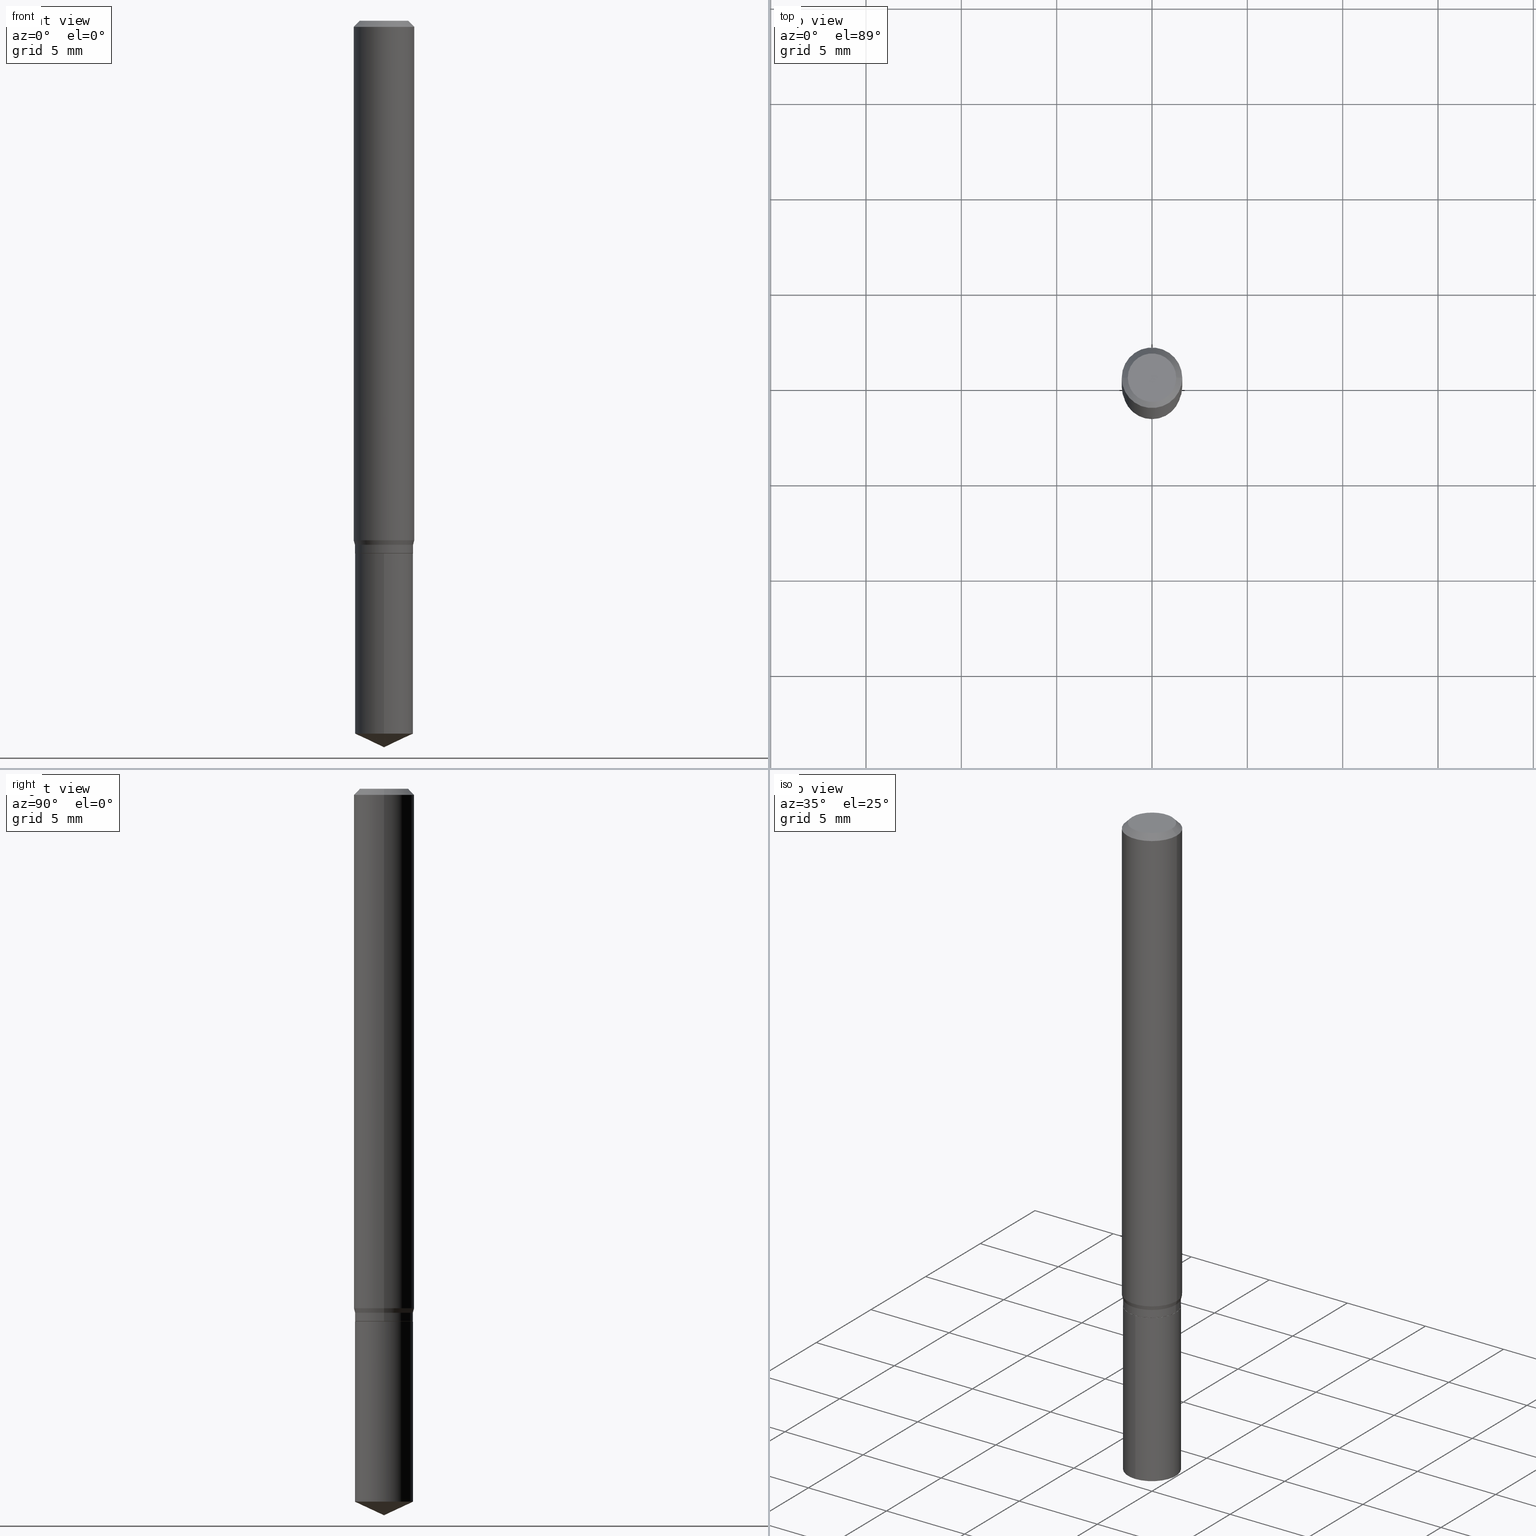
[diagram: canonical four-view strip — front | top / right | iso, engineering-drawing reading convention]
A machine part, canonical four-view strip (front | top / right | iso — engineering-drawing reading convention). The complete STEP part file that produces these views, byte-faithful:
ISO-10303-21;
HEADER;
FILE_DESCRIPTION (( 'STEP AP203' ),
    '1' );
FILE_NAME ('07227.STEP',
    '2024-04-23T20:05:45',
    ( '' ),
    ( '' ),
    'SwSTEP 2.0',
    'SolidWorks 2023',
    '' );
FILE_SCHEMA (( 'CONFIG_CONTROL_DESIGN' ));
ENDSEC;

DATA;
#1 = ORIENTED_EDGE ( 'NONE', *, *, #221, .F. ) ;
#2 = CIRCLE ( 'NONE', #109, 0.05999999999999999778 ) ;
#3 = CC_DESIGN_APPROVAL ( #303, ( #213 ) ) ;
#4 = FACE_OUTER_BOUND ( 'NONE', #463, .T. ) ;
#5 = ORIENTED_EDGE ( 'NONE', *, *, #473, .T. ) ;
#6 = FACE_OUTER_BOUND ( 'NONE', #134, .T. ) ;
#7 = DIRECTION ( 'NONE',  ( 1.000000000000000000, -6.982962677686268288E-15, 0.000000000000000000 ) ) ;
#8 = AXIS2_PLACEMENT_3D ( 'NONE', #146, #350, #230 ) ;
#9 = AXIS2_PLACEMENT_3D ( 'NONE', #142, #298, #444 ) ;
#10 = ADVANCED_FACE ( 'NONE', ( #405 ), #413, .T. ) ;
#11 = ORIENTED_EDGE ( 'NONE', *, *, #194, .T. ) ;
#12 = ORIENTED_EDGE ( 'NONE', *, *, #490, .F. ) ;
#13 = CARTESIAN_POINT ( 'NONE',  ( 2.690015686803650369E-29, -3.840629472727460101E-15, -1.100000000000000089 ) ) ;
#14 = DIRECTION ( 'NONE',  ( -6.982962677686268288E-15, -1.000000000000000000, 3.520397390770484241E-15 ) ) ;
#15 = EDGE_CURVE ( 'NONE', #19, #16, #2, .T. ) ;
#16 = VERTEX_POINT ( 'NONE', #225 ) ;
#17 = FACE_OUTER_BOUND ( 'NONE', #48, .T. ) ;
#18 = FACE_OUTER_BOUND ( 'NONE', #156, .T. ) ;
#19 = VERTEX_POINT ( 'NONE', #324 ) ;
#20 = DIRECTION ( 'NONE',  ( 0.7071067811865453523, -7.319954787623248157E-15, -0.7071067811865496822 ) ) ;
#21 = CIRCLE ( 'NONE', #348, 0.05999999999999999778 ) ;
#22 = CC_DESIGN_SECURITY_CLASSIFICATION ( #111, ( #213 ) ) ;
#23 = FACE_OUTER_BOUND ( 'NONE', #80, .T. ) ;
#24 = ADVANCED_FACE ( 'NONE', ( #93 ), #59, .T. ) ;
#25 = CARTESIAN_POINT ( 'NONE',  ( -4.189777606611400503E-16, -0.06000000000000514644, -1.472021540510699777 ) ) ;
#26 = CARTESIAN_POINT ( 'NONE',  ( 3.668099535622682715E-29, -5.237370474839449507E-15, -1.500000000000000222 ) ) ;
#27 = EDGE_LOOP ( 'NONE', ( #167, #203, #314, #178 ) ) ;
#28 = DIRECTION ( 'NONE',  ( -6.982962677686268288E-15, -1.000000000000000000, 3.520397390770484241E-15 ) ) ;
#29 = VERTEX_POINT ( 'NONE', #26 ) ;
#30 = EDGE_CURVE ( 'NONE', #476, #423, #308, .T. ) ;
#31 = CIRCLE ( 'NONE', #356, 0.06250000000000012490 ) ;
#32 = CC_DESIGN_APPROVAL ( #125, ( #111 ) ) ;
#33 = DIRECTION ( 'NONE',  ( -2.445468806185136597E-29, 3.491481338843145583E-15, 1.000000000000000000 ) ) ;
#34 = DIRECTION ( 'NONE',  ( -2.445468806185136877E-29, 3.491481338843145188E-15, 1.000000000000000000 ) ) ;
#35 = PERSON_AND_ORGANIZATION ( #427, #392 ) ;
#36 = DIRECTION ( 'NONE',  ( 6.439704144417020098E-15, 0.9063077870366507138, 0.4226182617406976649 ) ) ;
#37 = COORDINATED_UNIVERSAL_TIME_OFFSET ( 5, 0, .BEHIND. ) ;
#38 = APPROVAL ( #232, 'UNSPECIFIED' ) ;
#39 = PERSON_AND_ORGANIZATION ( #427, #392 ) ;
#40 = VECTOR ( 'NONE', #165, 39.37007874015748143 ) ;
#41 = CALENDAR_DATE ( 2024, 23, 4 ) ;
#42 = EDGE_LOOP ( 'NONE', ( #116, #259, #282, #287 ) ) ;
#43 = CARTESIAN_POINT ( 'NONE',  ( 0.000000000000000000, 0.000000000000000000, 0.000000000000000000 ) ) ;
#44 = ORIENTED_EDGE ( 'NONE', *, *, #386, .T. ) ;
#45 = CARTESIAN_POINT ( 'NONE',  ( 0.05949999999999999040, -4.256115752049792939E-15, -1.100000000000000089 ) ) ;
#46 = DIRECTION ( 'NONE',  ( 1.000000000000000000, -6.982962677686267499E-15, 4.876176775795936353E-29 ) ) ;
#47 = VECTOR ( 'NONE', #411, 39.37007874015748143 ) ;
#48 = EDGE_LOOP ( 'NONE', ( #190, #338 ) ) ;
#49 = CARTESIAN_POINT ( 'NONE',  ( 3.056836007731440539E-31, -4.364351673553960451E-17, -0.01250000000000008049 ) ) ;
#50 = EDGE_CURVE ( 'NONE', #77, #197, #266, .T. ) ;
#51 = CYLINDRICAL_SURFACE ( 'NONE', #334, 0.05999999999999999778 ) ;
#52 = EDGE_LOOP ( 'NONE', ( #274, #357, #11, #152 ) ) ;
#53 = CC_DESIGN_PERSON_AND_ORGANIZATION_ASSIGNMENT ( #442, #226, ( #233 ) ) ;
#54 = DIRECTION ( 'NONE',  ( -1.000000000000000000, 6.982962677686266711E-15, 0.000000000000000000 ) ) ;
#55 = AXIS2_PLACEMENT_3D ( 'NONE', #401, #56, #370 ) ;
#56 = DIRECTION ( 'NONE',  ( -2.445399690415121530E-29, 3.491580316559632610E-15, 1.000000000000000000 ) ) ;
#57 = VECTOR ( 'NONE', #336, 39.37007874015748143 ) ;
#58 = APPROVAL_DATE_TIME ( #431, #303 ) ;
#59 = CYLINDRICAL_SURFACE ( 'NONE', #55, 0.05999999999999999778 ) ;
#60 = CARTESIAN_POINT ( 'NONE',  ( -0.04999999999999999584, 3.709698922520826725E-16, -1.592040838894077649E-18 ) ) ;
#61 =( NAMED_UNIT ( * ) PLANE_ANGLE_UNIT ( ) SI_UNIT ( $, .RADIAN. ) );
#62 = DIRECTION ( 'NONE',  ( 1.000000000000000000, -6.982962677686269077E-15, 0.000000000000000000 ) ) ;
#63 = CARTESIAN_POINT ( 'NONE',  ( -0.05949999999999999040, -3.417856544950200510E-15, -1.100000000000000089 ) ) ;
#64 = EDGE_CURVE ( 'NONE', #114, #458, #150, .T. ) ;
#65 = EDGE_LOOP ( 'NONE', ( #107, #470, #311, #385 ) ) ;
#66 = AXIS2_PLACEMENT_3D ( 'NONE', #372, #183, #28 ) ;
#67 = CALENDAR_DATE ( 2024, 23, 4 ) ;
#68 = FACE_OUTER_BOUND ( 'NONE', #278, .T. ) ;
#69 = CARTESIAN_POINT ( 'NONE',  ( -0.05949999999999999040, -3.415207317776089703E-15, -1.100000000000000089 ) ) ;
#70 = LINE ( 'NONE', #337, #133 ) ;
#71 = VECTOR ( 'NONE', #36, 39.37007874015748854 ) ;
#72 = ADVANCED_FACE ( 'NONE', ( #126 ), #191, .T. ) ;
#73 = DATE_TIME_ROLE ( 'creation_date' ) ;
#74 = DESIGN_CONTEXT ( 'detailed design', #419, 'design' ) ;
#75 = ORIENTED_EDGE ( 'NONE', *, *, #264, .T. ) ;
#76 = CIRCLE ( 'NONE', #242, 0.05949999999999999040 ) ;
#77 = VERTEX_POINT ( 'NONE', #25 ) ;
#78 = FACE_OUTER_BOUND ( 'NONE', #42, .T. ) ;
#79 = DIRECTION ( 'NONE',  ( 1.000000000000000000, -6.982962677686266711E-15, 4.876176775795935793E-29 ) ) ;
#80 = EDGE_LOOP ( 'NONE', ( #403, #421, #157, #174 ) ) ;
#81 = DIRECTION ( 'NONE',  ( 1.000000000000000000, -6.982962677686268288E-15, 0.000000000000000000 ) ) ;
#82 = ADVANCED_FACE ( 'NONE', ( #397 ), #284, .T. ) ;
#83 = DIRECTION ( 'NONE',  ( -0.2588190451025213501, 5.211531920934551042E-15, 0.9659258262890682012 ) ) ;
#84 = ORIENTED_EDGE ( 'NONE', *, *, #402, .F. ) ;
#85 = DIRECTION ( 'NONE',  ( -6.982962677686265922E-15, -1.000000000000000000, 4.553079989440439092E-15 ) ) ;
#86 = DIRECTION ( 'NONE',  ( 0.2588190451025213501, 1.565188264969621968E-15, 0.9659258262890682012 ) ) ;
#87 = AXIS2_PLACEMENT_3D ( 'NONE', #204, #323, #327 ) ;
#88 = LOCAL_TIME ( 16, 5, 45.00000000000000000, #193 ) ;
#89 = CARTESIAN_POINT ( 'NONE',  ( -0.06250000000000000000, -1.450335970644045520E-15, -0.01250000000000008049 ) ) ;
#90 = DIRECTION ( 'NONE',  ( 0.7071067811865294761, -2.468850131082068128E-15, 0.7071067811865655584 ) ) ;
#91 = CARTESIAN_POINT ( 'NONE',  ( -9.260740279983036507E-28, 1.322265303911854087E-13, 37.87007874015748143 ) ) ;
#92 = APPLICATION_CONTEXT ( 'configuration controlled 3d designs of mechanical parts and assemblies' ) ;
#93 = FACE_OUTER_BOUND ( 'NONE', #371, .T. ) ;
#94 = CARTESIAN_POINT ( 'NONE',  ( 2.645997248292317923E-29, -3.777782808628283606E-15, -1.082000000000000073 ) ) ;
#95 = VECTOR ( 'NONE', #345, 39.37007874015748143 ) ;
#96 = ORIENTED_EDGE ( 'NONE', *, *, #484, .F. ) ;
#97 = CARTESIAN_POINT ( 'NONE',  ( 3.056836007731440539E-31, -4.364351673553960451E-17, -0.01250000000000008049 ) ) ;
#98 = DIRECTION ( 'NONE',  ( 1.000000000000000000, -6.982962677686268288E-15, 0.000000000000000000 ) ) ;
#99 = ORIENTED_EDGE ( 'NONE', *, *, #360, .T. ) ;
#100 = ADVANCED_FACE ( 'NONE', ( #117 ), #237, .T. ) ;
#101 = ORIENTED_EDGE ( 'NONE', *, *, #173, .T. ) ;
#102 = DIRECTION ( 'NONE',  ( 1.000000000000000000, -6.982962677686264344E-15, 0.000000000000000000 ) ) ;
#103 = PERSON_AND_ORGANIZATION_ROLE ( 'design_owner' ) ;
#104 = AXIS2_PLACEMENT_3D ( 'NONE', #94, #33, #487 ) ;
#105 = APPROVAL_PERSON_ORGANIZATION ( #39, #38, #381 ) ;
#106 = ADVANCED_FACE ( 'NONE', ( #462 ), #51, .T. ) ;
#107 = ORIENTED_EDGE ( 'NONE', *, *, #276, .F. ) ;
#108 = DATE_AND_TIME ( #188, #376 ) ;
#109 = AXIS2_PLACEMENT_3D ( 'NONE', #374, #406, #130 ) ;
#110 = AXIS2_PLACEMENT_3D ( 'NONE', #185, #481, #409 ) ;
#111 = SECURITY_CLASSIFICATION ( '', '', #330 ) ;
#112 = CC_DESIGN_DATE_AND_TIME_ASSIGNMENT ( #398, #253, ( #111 ) ) ;
#113 = DIRECTION ( 'NONE',  ( 1.000000000000000000, -6.982962677686267499E-15, 4.876176775795936353E-29 ) ) ;
#114 = VERTEX_POINT ( 'NONE', #89 ) ;
#115 = ORIENTED_EDGE ( 'NONE', *, *, #151, .F. ) ;
#116 = ORIENTED_EDGE ( 'NONE', *, *, #15, .T. ) ;
#117 = FACE_OUTER_BOUND ( 'NONE', #128, .T. ) ;
#118 = VERTEX_POINT ( 'NONE', #469 ) ;
#119 = LINE ( 'NONE', #418, #176 ) ;
#120 = ADVANCED_FACE ( 'NONE', ( #429 ), #241, .T. ) ;
#121 = CARTESIAN_POINT ( 'NONE',  ( 3.056836007731440539E-31, -4.364351673553960451E-17, -0.01250000000000008049 ) ) ;
#122 = EDGE_LOOP ( 'NONE', ( #84, #296, #99, #333 ) ) ;
#123 = ORIENTED_EDGE ( 'NONE', *, *, #484, .T. ) ;
#124 = AXIS2_PLACEMENT_3D ( 'NONE', #329, #474, #217 ) ;
#125 = APPROVAL ( #369, 'UNSPECIFIED' ) ;
#126 = FACE_OUTER_BOUND ( 'NONE', #270, .T. ) ;
#127 = AXIS2_PLACEMENT_3D ( 'NONE', #341, #172, #98 ) ;
#128 = EDGE_LOOP ( 'NONE', ( #393, #123, #163, #454 ) ) ;
#129 = PLANE ( 'NONE',  #192 ) ;
#130 = DIRECTION ( 'NONE',  ( 1.000000000000000000, -6.982962677686268288E-15, 0.000000000000000000 ) ) ;
#131 = DIRECTION ( 'NONE',  ( 6.982962677686265922E-15, 1.000000000000000000, -3.491580316559632610E-15 ) ) ;
#132 = CARTESIAN_POINT ( 'NONE',  ( 3.599757046796273077E-29, -5.139572560910813619E-15, -1.472021540510700000 ) ) ;
#133 = VECTOR ( 'NONE', #486, 39.37007874015748143 ) ;
#134 = EDGE_LOOP ( 'NONE', ( #137, #455, #440, #460 ) ) ;
#135 =( GEOMETRIC_REPRESENTATION_CONTEXT ( 3 ) GLOBAL_UNCERTAINTY_ASSIGNED_CONTEXT ( ( #148 ) ) GLOBAL_UNIT_ASSIGNED_CONTEXT ( ( #447, #61, #149 ) ) REPRESENTATION_CONTEXT ( 'NONE', 'WORKASPACE' ) );
#136 = CC_DESIGN_PERSON_AND_ORGANIZATION_ASSIGNMENT ( #181, #343, ( #213 ) ) ;
#137 = ORIENTED_EDGE ( 'NONE', *, *, #313, .T. ) ;
#138 = CARTESIAN_POINT ( 'NONE',  ( 0.000000000000000000, 0.000000000000000000, 0.000000000000000000 ) ) ;
#139 = LINE ( 'NONE', #257, #57 ) ;
#140 = PERSON_AND_ORGANIZATION ( #427, #392 ) ;
#141 = EDGE_CURVE ( 'NONE', #118, #256, #451, .T. ) ;
#142 = CARTESIAN_POINT ( 'NONE',  ( 0.000000000000000000, 0.000000000000000000, 0.000000000000000000 ) ) ;
#143 = CLOSED_SHELL ( 'NONE', ( #363, #379, #443, #373, #435, #106, #299, #82, #120, #355, #202, #10 ) ) ;
#144 = CONICAL_SURFACE ( 'NONE', #66, 84.42940631927361039, 1.134464013796312676 ) ;
#145 = APPROVAL_STATUS ( 'not_yet_approved' ) ;
#146 = CARTESIAN_POINT ( 'NONE',  ( 3.893286209682126177E-47, -5.558580879666067980E-33, -1.592040838891559689E-18 ) ) ;
#147 = ADVANCED_BREP_SHAPE_REPRESENTATION ( '07227', ( #488, #325, #9 ), #135 ) ;
#148 = UNCERTAINTY_MEASURE_WITH_UNIT (LENGTH_MEASURE( 1.000000000000000082E-05 ), #447, 'distance_accuracy_value', 'NONE');
#149 =( NAMED_UNIT ( * ) SI_UNIT ( $, .STERADIAN. ) SOLID_ANGLE_UNIT ( ) );
#150 = CIRCLE ( 'NONE', #477, 0.06250000000000000000 ) ;
#151 = EDGE_CURVE ( 'NONE', #238, #458, #210, .T. ) ;
#152 = ORIENTED_EDGE ( 'NONE', *, *, #169, .F. ) ;
#153 = ORIENTED_EDGE ( 'NONE', *, *, #30, .F. ) ;
#154 = CIRCLE ( 'NONE', #8, 0.04999999999999999584 ) ;
#155 = DIRECTION ( 'NONE',  ( 1.000000000000000000, -6.982962677686264344E-15, 0.000000000000000000 ) ) ;
#156 = EDGE_LOOP ( 'NONE', ( #306, #153 ) ) ;
#157 = ORIENTED_EDGE ( 'NONE', *, *, #221, .T. ) ;
#158 = DIRECTION ( 'NONE',  ( -2.445399690415121530E-29, 3.491580316559632610E-15, 1.000000000000000000 ) ) ;
#159 = DIRECTION ( 'NONE',  ( -2.445399690415121530E-29, 3.491580316559632610E-15, 1.000000000000000000 ) ) ;
#160 = ORIENTED_EDGE ( 'NONE', *, *, #64, .T. ) ;
#161 = PLANE ( 'NONE',  #349 ) ;
#162 = CARTESIAN_POINT ( 'NONE',  ( 0.04999999999999999584, -4.077247707424184212E-16, -1.592040838888913461E-18 ) ) ;
#163 = ORIENTED_EDGE ( 'NONE', *, *, #339, .F. ) ;
#164 = EDGE_LOOP ( 'NONE', ( #115, #12, #101, #160 ) ) ;
#165 = DIRECTION ( 'NONE',  ( -2.445399690415121810E-29, 3.491580316559632610E-15, 1.000000000000000000 ) ) ;
#166 = AXIS2_PLACEMENT_3D ( 'NONE', #354, #368, #155 ) ;
#167 = ORIENTED_EDGE ( 'NONE', *, *, #286, .F. ) ;
#168 = CARTESIAN_POINT ( 'NONE',  ( -0.06250000000000000000, 3.927916506198521080E-16, -0.01250000000000008049 ) ) ;
#169 = EDGE_CURVE ( 'NONE', #206, #430, #407, .T. ) ;
#170 = DIRECTION ( 'NONE',  ( -2.445468806185136597E-29, 3.491481338843145583E-15, 1.000000000000000000 ) ) ;
#171 = PERSON_AND_ORGANIZATION_ROLE ( 'design_supplier' ) ;
#172 = DIRECTION ( 'NONE',  ( -2.445468806185136597E-29, 3.491481338843145583E-15, 1.000000000000000000 ) ) ;
#173 = EDGE_CURVE ( 'NONE', #265, #114, #472, .T. ) ;
#174 = ORIENTED_EDGE ( 'NONE', *, *, #173, .F. ) ;
#175 = LINE ( 'NONE', #63, #95 ) ;
#176 = VECTOR ( 'NONE', #243, 39.37007874015748854 ) ;
#177 = DIRECTION ( 'NONE',  ( -6.982962677686265922E-15, -1.000000000000000000, 4.553079989440439092E-15 ) ) ;
#178 = ORIENTED_EDGE ( 'NONE', *, *, #141, .F. ) ;
#179 = CARTESIAN_POINT ( 'NONE',  ( 0.06250000000000012490, -4.181642011608071930E-15, -1.072669872981077521 ) ) ;
#180 = MECHANICAL_CONTEXT ( 'NONE', #92, 'mechanical' ) ;
#181 = PERSON_AND_ORGANIZATION ( #427, #392 ) ;
#182 = EDGE_CURVE ( 'NONE', #77, #240, #273, .T. ) ;
#183 = DIRECTION ( 'NONE',  ( -2.445399690415121530E-29, 3.491580316559632610E-15, 1.000000000000000000 ) ) ;
#184 = COORDINATED_UNIVERSAL_TIME_OFFSET ( 5, 0, .BEHIND. ) ;
#185 = CARTESIAN_POINT ( 'NONE',  ( 3.893286209682126177E-47, -5.558580879666067980E-33, -1.592040838891559689E-18 ) ) ;
#186 = AXIS2_PLACEMENT_3D ( 'NONE', #236, #223, #260 ) ;
#187 = APPROVAL_PERSON_ORGANIZATION ( #35, #303, #300 ) ;
#188 = CALENDAR_DATE ( 2024, 23, 4 ) ;
#189 = EDGE_CURVE ( 'NONE', #16, #206, #422, .T. ) ;
#190 = ORIENTED_EDGE ( 'NONE', *, *, #490, .T. ) ;
#191 = CONICAL_SURFACE ( 'NONE', #227, 84.42940631927361039, 1.134464013796312676 ) ;
#192 = AXIS2_PLACEMENT_3D ( 'NONE', #208, #359, #245 ) ;
#193 = COORDINATED_UNIVERSAL_TIME_OFFSET ( 5, 0, .BEHIND. ) ;
#194 = EDGE_CURVE ( 'NONE', #19, #430, #239, .T. ) ;
#195 = DIRECTION ( 'NONE',  ( -2.445468806185136597E-29, 3.491481338843145583E-15, 1.000000000000000000 ) ) ;
#196 = DIRECTION ( 'NONE',  ( 2.445468806185136597E-29, -3.491481338843145583E-15, -1.000000000000000000 ) ) ;
#197 = VERTEX_POINT ( 'NONE', #201 ) ;
#198 = AXIS2_PLACEMENT_3D ( 'NONE', #459, #400, #79 ) ;
#199 = CIRCLE ( 'NONE', #478, 0.05999999999999999778 ) ;
#200 = APPROVAL_PERSON_ORGANIZATION ( #305, #125, #332 ) ;
#201 = CARTESIAN_POINT ( 'NONE',  ( 4.263256414560960875E-16, 0.05999999999999486994, -1.472021540510700444 ) ) ;
#202 = ADVANCED_FACE ( 'NONE', ( #18 ), #129, .F. ) ;
#203 = ORIENTED_EDGE ( 'NONE', *, *, #30, .T. ) ;
#204 = CARTESIAN_POINT ( 'NONE',  ( 3.056836007731440539E-31, -4.364351673553960451E-17, -0.01250000000000008049 ) ) ;
#205 = DIMENSIONAL_EXPONENTS ( 1.000000000000000000, 0.000000000000000000, 0.000000000000000000, 0.000000000000000000, 0.000000000000000000, 0.000000000000000000, 0.000000000000000000 ) ;
#206 = VERTEX_POINT ( 'NONE', #395 ) ;
#207 = LINE ( 'NONE', #364, #302 ) ;
#208 = CARTESIAN_POINT ( 'NONE',  ( 2.690015686803650369E-29, -3.840629472727460101E-15, -1.100000000000000089 ) ) ;
#209 = AXIS2_PLACEMENT_3D ( 'NONE', #214, #170, #62 ) ;
#210 = LINE ( 'NONE', #420, #297 ) ;
#211 = AXIS2_PLACEMENT_3D ( 'NONE', #121, #196, #54 ) ;
#212 = CALENDAR_DATE ( 2024, 23, 4 ) ;
#213 = PRODUCT_DEFINITION_FORMATION_WITH_SPECIFIED_SOURCE ( 'ANY', '', #254, .NOT_KNOWN. ) ;
#214 = CARTESIAN_POINT ( 'NONE',  ( 2.690015686803650369E-29, -3.840629472727460101E-15, -1.100000000000000089 ) ) ;
#215 = PERSON_AND_ORGANIZATION ( #427, #392 ) ;
#216 = CC_DESIGN_PERSON_AND_ORGANIZATION_ASSIGNMENT ( #215, #171, ( #213 ) ) ;
#217 = DIRECTION ( 'NONE',  ( 1.000000000000000000, -6.982962677686269077E-15, 0.000000000000000000 ) ) ;
#218 = CARTESIAN_POINT ( 'NONE',  ( 0.05949999999999999040, -4.256115752049792939E-15, -1.100000000000000089 ) ) ;
#219 = FACE_OUTER_BOUND ( 'NONE', #468, .T. ) ;
#220 = LINE ( 'NONE', #439, #47 ) ;
#221 = EDGE_CURVE ( 'NONE', #458, #114, #382, .T. ) ;
#222 = ORIENTED_EDGE ( 'NONE', *, *, #317, .T. ) ;
#223 = DIRECTION ( 'NONE',  ( -2.445468806185136597E-29, 3.491481338843145583E-15, 1.000000000000000000 ) ) ;
#224 = VECTOR ( 'NONE', #312, 39.37007874015748143 ) ;
#225 = CARTESIAN_POINT ( 'NONE',  ( -0.05999999999999999778, -3.382007628887101006E-15, -1.082000000000000073 ) ) ;
#226 = PERSON_AND_ORGANIZATION_ROLE ( 'creator' ) ;
#227 = AXIS2_PLACEMENT_3D ( 'NONE', #91, #159, #14 ) ;
#228 = AXIS2_PLACEMENT_3D ( 'NONE', #138, #441, #113 ) ;
#229 = CC_DESIGN_DATE_AND_TIME_ASSIGNMENT ( #108, #73, ( #233 ) ) ;
#230 = DIRECTION ( 'NONE',  ( 1.000000000000000000, -6.982962677686265922E-15, 4.875957971899673662E-29 ) ) ;
#231 = APPLICATION_PROTOCOL_DEFINITION ( 'international standard', 'config_control_design', 1994, #419 ) ;
#232 = APPROVAL_STATUS ( 'not_yet_approved' ) ;
#233 = PRODUCT_DEFINITION ( 'UNKNOWN', '', #213, #74 ) ;
#234 = AXIS2_PLACEMENT_3D ( 'NONE', #272, #195, #81 ) ;
#235 = LOCAL_TIME ( 16, 5, 45.00000000000000000, #184 ) ;
#236 = CARTESIAN_POINT ( 'NONE',  ( 2.645997248292317923E-29, -3.777782808628283606E-15, -1.082000000000000073 ) ) ;
#237 = CYLINDRICAL_SURFACE ( 'NONE', #261, 0.05999999999999999778 ) ;
#238 = VERTEX_POINT ( 'NONE', #162 ) ;
#239 = LINE ( 'NONE', #389, #279 ) ;
#240 = VERTEX_POINT ( 'NONE', #465 ) ;
#241 = CONICAL_SURFACE ( 'NONE', #211, 0.06250000000000000000, 0.7853981633974452814 ) ;
#242 = AXIS2_PLACEMENT_3D ( 'NONE', #283, #428, #247 ) ;
#243 = DIRECTION ( 'NONE',  ( -6.328713451373365434E-15, -0.9063077870366478273, 0.4226182617407039932 ) ) ;
#244 = CC_DESIGN_APPROVAL ( #38, ( #233 ) ) ;
#245 = DIRECTION ( 'NONE',  ( 1.000000000000000000, -6.982962677686265922E-15, 4.876176775795935793E-29 ) ) ;
#246 = EDGE_CURVE ( 'NONE', #29, #197, #281, .T. ) ;
#247 = DIRECTION ( 'NONE',  ( 1.000000000000000000, -6.982962677686269077E-15, 0.000000000000000000 ) ) ;
#248 = CARTESIAN_POINT ( 'NONE',  ( -4.189777606611490729E-16, -0.06000000000000384193, -1.099999999999999645 ) ) ;
#249 = CARTESIAN_POINT ( 'NONE',  ( 2.690015686803650369E-29, -3.840629472727460101E-15, -1.100000000000000089 ) ) ;
#250 = ORIENTED_EDGE ( 'NONE', *, *, #360, .F. ) ;
#251 = LINE ( 'NONE', #432, #457 ) ;
#252 = CIRCLE ( 'NONE', #104, 0.05999999999999999778 ) ;
#253 = DATE_TIME_ROLE ( 'classification_date' ) ;
#254 = PRODUCT ( '07227', '07227', '', ( #180 ) ) ;
#255 = ORIENTED_EDGE ( 'NONE', *, *, #182, .T. ) ;
#256 = VERTEX_POINT ( 'NONE', #289 ) ;
#257 = CARTESIAN_POINT ( 'NONE',  ( -0.05999999999999999778, 4.263256414560600957E-16, -2.951361054152943413E-30 ) ) ;
#258 = LENGTH_MEASURE_WITH_UNIT ( LENGTH_MEASURE( 0.02539999999999999897 ), #448 );
#259 = ORIENTED_EDGE ( 'NONE', *, *, #189, .T. ) ;
#260 = DIRECTION ( 'NONE',  ( 1.000000000000000000, -6.982962677686268288E-15, 0.000000000000000000 ) ) ;
#261 = AXIS2_PLACEMENT_3D ( 'NONE', #249, #387, #315 ) ;
#262 = CONICAL_SURFACE ( 'NONE', #434, 0.06250000000000000000, 0.7853981633974452814 ) ;
#263 = CARTESIAN_POINT ( 'NONE',  ( 3.599757046796273077E-29, -5.139572560910813619E-15, -1.472021540510700000 ) ) ;
#264 = EDGE_CURVE ( 'NONE', #256, #118, #414, .T. ) ;
#265 = VERTEX_POINT ( 'NONE', #60 ) ;
#266 = CIRCLE ( 'NONE', #390, 0.05999999999999999778 ) ;
#267 = AXIS2_PLACEMENT_3D ( 'NONE', #321, #351, #307 ) ;
#268 = ORIENTED_EDGE ( 'NONE', *, *, #276, .T. ) ;
#269 = DIRECTION ( 'NONE',  ( -2.445468806185136597E-29, 3.491481338843145583E-15, 1.000000000000000000 ) ) ;
#270 = EDGE_LOOP ( 'NONE', ( #399, #288, #361 ) ) ;
#271 = ADVANCED_FACE ( 'NONE', ( #219 ), #144, .T. ) ;
#272 = CARTESIAN_POINT ( 'NONE',  ( 2.645997248292317923E-29, -3.777782808628283606E-15, -1.082000000000000073 ) ) ;
#273 = LINE ( 'NONE', #248, #40 ) ;
#274 = ORIENTED_EDGE ( 'NONE', *, *, #189, .F. ) ;
#275 = CARTESIAN_POINT ( 'NONE',  ( 2.690015686803650369E-29, -3.840629472727460101E-15, -1.100000000000000089 ) ) ;
#276 = EDGE_CURVE ( 'NONE', #118, #16, #139, .T. ) ;
#277 = CARTESIAN_POINT ( 'NONE',  ( 2.688792952400557567E-29, -3.838883732058038598E-15, -1.099499999999999922 ) ) ;
#278 = EDGE_LOOP ( 'NONE', ( #482, #222 ) ) ;
#279 = VECTOR ( 'NONE', #86, 39.37007874015747433 ) ;
#280 = DIRECTION ( 'NONE',  ( -1.000000000000000000, 6.982962677686265922E-15, -4.876176775795935793E-29 ) ) ;
#281 = LINE ( 'NONE', #426, #71 ) ;
#282 = ORIENTED_EDGE ( 'NONE', *, *, #386, .F. ) ;
#283 = CARTESIAN_POINT ( 'NONE',  ( 2.690015686803650369E-29, -3.840629472727460101E-15, -1.100000000000000089 ) ) ;
#284 = CYLINDRICAL_SURFACE ( 'NONE', #198, 0.06250000000000006939 ) ;
#285 = PERSON_AND_ORGANIZATION_ROLE ( 'classification_officer' ) ;
#286 = EDGE_CURVE ( 'NONE', #476, #118, #175, .T. ) ;
#287 = ORIENTED_EDGE ( 'NONE', *, *, #194, .F. ) ;
#288 = ORIENTED_EDGE ( 'NONE', *, *, #246, .T. ) ;
#289 = CARTESIAN_POINT ( 'NONE',  ( 0.05999999999999999778, -4.257861492719214443E-15, -1.099499999999999922 ) ) ;
#290 = DIRECTION ( 'NONE',  ( -2.445399690415121530E-29, 3.491580316559632610E-15, 1.000000000000000000 ) ) ;
#291 = CARTESIAN_POINT ( 'NONE',  ( 2.690015686803650369E-29, -3.840629472727460101E-15, -1.100000000000000089 ) ) ;
#292 = AXIS2_PLACEMENT_3D ( 'NONE', #410, #449, #412 ) ;
#293 = PERSON_AND_ORGANIZATION ( #427, #392 ) ;
#294 = ORIENTED_EDGE ( 'NONE', *, *, #317, .F. ) ;
#295 = ORIENTED_EDGE ( 'NONE', *, *, #322, .T. ) ;
#296 = ORIENTED_EDGE ( 'NONE', *, *, #169, .T. ) ;
#297 = VECTOR ( 'NONE', #20, 39.37007874015748143 ) ;
#298 = DIRECTION ( 'NONE',  ( 0.000000000000000000, 0.000000000000000000, 1.000000000000000000 ) ) ;
#299 = ADVANCED_FACE ( 'NONE', ( #446 ), #347, .T. ) ;
#300 = APPROVAL_ROLE ( '' ) ;
#301 = EDGE_CURVE ( 'NONE', #423, #256, #358, .T. ) ;
#302 = VECTOR ( 'NONE', #353, 39.37007874015748143 ) ;
#303 = APPROVAL ( #145, 'UNSPECIFIED' ) ;
#304 = CYLINDRICAL_SURFACE ( 'NONE', #292, 0.06250000000000006939 ) ;
#305 = PERSON_AND_ORGANIZATION ( #427, #392 ) ;
#306 = ORIENTED_EDGE ( 'NONE', *, *, #313, .F. ) ;
#307 = DIRECTION ( 'NONE',  ( 1.000000000000000000, -6.982962677686269077E-15, 0.000000000000000000 ) ) ;
#308 = CIRCLE ( 'NONE', #124, 0.05949999999999999040 ) ;
#309 = AXIS2_PLACEMENT_3D ( 'NONE', #277, #424, #7 ) ;
#310 = LOCAL_TIME ( 16, 5, 45.00000000000000000, #480 ) ;
#311 = ORIENTED_EDGE ( 'NONE', *, *, #450, .T. ) ;
#312 = DIRECTION ( 'NONE',  ( -0.7071067811865453523, 2.468850131082234184E-15, -0.7071067811865496822 ) ) ;
#313 = EDGE_CURVE ( 'NONE', #423, #476, #76, .T. ) ;
#314 = ORIENTED_EDGE ( 'NONE', *, *, #301, .T. ) ;
#315 = DIRECTION ( 'NONE',  ( -6.982962677686265922E-15, -1.000000000000000000, 4.553079989440439092E-15 ) ) ;
#316 = CARTESIAN_POINT ( 'NONE',  ( 1.946643104841063088E-47, -2.779290439833033990E-33, -7.960204194457798443E-19 ) ) ;
#317 = EDGE_CURVE ( 'NONE', #388, #240, #367, .T. ) ;
#318 = DIRECTION ( 'NONE',  ( -2.445468806185136597E-29, 3.491481338843145583E-15, 1.000000000000000000 ) ) ;
#319 = EDGE_LOOP ( 'NONE', ( #75, #268, #366, #352 ) ) ;
#320 = CONICAL_SURFACE ( 'NONE', #267, 0.05949999999999999040, 0.7853981633974227439 ) ;
#321 = CARTESIAN_POINT ( 'NONE',  ( 2.690015686803650369E-29, -3.840629472727460101E-15, -1.100000000000000089 ) ) ;
#322 = EDGE_CURVE ( 'NONE', #29, #77, #119, .T. ) ;
#323 = DIRECTION ( 'NONE',  ( -2.445468806185136597E-29, 3.491481338843145583E-15, 1.000000000000000000 ) ) ;
#324 = CARTESIAN_POINT ( 'NONE',  ( 0.05999999999999999778, -4.196760569289459451E-15, -1.082000000000000073 ) ) ;
#325 = MANIFOLD_SOLID_BREP ( 'Body-Move/Copy2[2]', #143 ) ;
#326 = DIRECTION ( 'NONE',  ( 2.445468806185136597E-29, -3.491481338843145583E-15, -1.000000000000000000 ) ) ;
#327 = DIRECTION ( 'NONE',  ( 1.000000000000000000, -6.982962677686266711E-15, 0.000000000000000000 ) ) ;
#328 = COORDINATED_UNIVERSAL_TIME_OFFSET ( 5, 0, .BEHIND. ) ;
#329 = CARTESIAN_POINT ( 'NONE',  ( 2.690015686803650369E-29, -3.840629472727460101E-15, -1.100000000000000089 ) ) ;
#330 = SECURITY_CLASSIFICATION_LEVEL ( 'unclassified' ) ;
#331 = DATE_AND_TIME ( #380, #310 ) ;
#332 = APPROVAL_ROLE ( '' ) ;
#333 = ORIENTED_EDGE ( 'NONE', *, *, #64, .F. ) ;
#334 = AXIS2_PLACEMENT_3D ( 'NONE', #43, #269, #46 ) ;
#335 = CIRCLE ( 'NONE', #110, 0.04999999999999999584 ) ;
#336 = DIRECTION ( 'NONE',  ( -2.445468806185136877E-29, 3.491481338843145188E-15, 1.000000000000000000 ) ) ;
#337 = CARTESIAN_POINT ( 'NONE',  ( 0.05999999999999999778, -4.189777606611760421E-16, 2.925706065477561756E-30 ) ) ;
#338 = ORIENTED_EDGE ( 'NONE', *, *, #438, .T. ) ;
#339 = EDGE_CURVE ( 'NONE', #240, #388, #21, .T. ) ;
#340 = FACE_OUTER_BOUND ( 'NONE', #319, .T. ) ;
#341 = CARTESIAN_POINT ( 'NONE',  ( 2.688792952400557567E-29, -3.838883732058038598E-15, -1.099499999999999922 ) ) ;
#342 = APPROVAL_DATE_TIME ( #378, #125 ) ;
#343 = PERSON_AND_ORGANIZATION_ROLE ( 'creator' ) ;
#344 = CARTESIAN_POINT ( 'NONE',  ( 2.623180713709797511E-29, -3.745206844252678682E-15, -1.072669872981077521 ) ) ;
#345 = DIRECTION ( 'NONE',  ( -0.7071067811865294761, 7.493145998870289474E-15, 0.7071067811865655584 ) ) ;
#346 = CARTESIAN_POINT ( 'NONE',  ( 0.06250000000000000000, -4.800786840909312308E-16, -0.01250000000000008049 ) ) ;
#347 = CONICAL_SURFACE ( 'NONE', #234, 0.05999999999999999778, 0.2617993877991500740 ) ;
#348 = AXIS2_PLACEMENT_3D ( 'NONE', #275, #394, #85 ) ;
#349 = AXIS2_PLACEMENT_3D ( 'NONE', #316, #464, #280 ) ;
#350 = DIRECTION ( 'NONE',  ( -2.445468806185136597E-29, 3.491481338843145583E-15, 1.000000000000000000 ) ) ;
#351 = DIRECTION ( 'NONE',  ( -2.445468806185136597E-29, 3.491481338843145583E-15, 1.000000000000000000 ) ) ;
#352 = ORIENTED_EDGE ( 'NONE', *, *, #450, .F. ) ;
#353 = DIRECTION ( 'NONE',  ( -2.445468806185136877E-29, 3.491481338843145188E-15, 1.000000000000000000 ) ) ;
#354 = CARTESIAN_POINT ( 'NONE',  ( 2.623180713709797511E-29, -3.745206844252678682E-15, -1.072669872981077521 ) ) ;
#355 = ADVANCED_FACE ( 'NONE', ( #17 ), #161, .F. ) ;
#356 = AXIS2_PLACEMENT_3D ( 'NONE', #344, #445, #102 ) ;
#357 = ORIENTED_EDGE ( 'NONE', *, *, #415, .T. ) ;
#358 = LINE ( 'NONE', #45, #416 ) ;
#359 = DIRECTION ( 'NONE',  ( -2.438088387897960049E-29, 3.491481338843145188E-15, 1.000000000000000000 ) ) ;
#360 = EDGE_CURVE ( 'NONE', #430, #458, #207, .T. ) ;
#361 = ORIENTED_EDGE ( 'NONE', *, *, #50, .F. ) ;
#362 = CARTESIAN_POINT ( 'NONE',  ( -0.05999999999999999778, -3.351457167172223905E-15, -1.082000000000000073 ) ) ;
#363 = ADVANCED_FACE ( 'NONE', ( #6 ), #320, .T. ) ;
#364 = CARTESIAN_POINT ( 'NONE',  ( 0.06250000000000006939, -4.364351673553921624E-16, 3.047610484872463374E-30 ) ) ;
#365 = DIRECTION ( 'NONE',  ( 1.000000000000000000, -6.982962677686266711E-15, 0.000000000000000000 ) ) ;
#366 = ORIENTED_EDGE ( 'NONE', *, *, #15, .F. ) ;
#367 = CIRCLE ( 'NONE', #425, 0.05999999999999999778 ) ;
#368 = DIRECTION ( 'NONE',  ( -2.445468806185136597E-29, 3.491481338843145583E-15, 1.000000000000000000 ) ) ;
#369 = APPROVAL_STATUS ( 'not_yet_approved' ) ;
#370 = DIRECTION ( 'NONE',  ( -6.982962677686265922E-15, -1.000000000000000000, 4.553079989440439092E-15 ) ) ;
#371 = EDGE_LOOP ( 'NONE', ( #96, #5, #255, #294 ) ) ;
#372 = CARTESIAN_POINT ( 'NONE',  ( -9.260740279983036507E-28, 1.322265303911854087E-13, 37.87007874015748143 ) ) ;
#373 = ADVANCED_FACE ( 'NONE', ( #78 ), #467, .T. ) ;
#374 = CARTESIAN_POINT ( 'NONE',  ( 2.645997248292317923E-29, -3.777782808628283606E-15, -1.082000000000000073 ) ) ;
#375 = DIRECTION ( 'NONE',  ( 2.445399690415121250E-29, -3.491580316559632610E-15, -1.000000000000000000 ) ) ;
#376 = LOCAL_TIME ( 16, 5, 45.00000000000000000, #37 ) ;
#377 = APPROVAL_DATE_TIME ( #331, #38 ) ;
#378 = DATE_AND_TIME ( #41, #88 ) ;
#379 = ADVANCED_FACE ( 'NONE', ( #23 ), #262, .T. ) ;
#380 = CALENDAR_DATE ( 2024, 23, 4 ) ;
#381 = APPROVAL_ROLE ( '' ) ;
#382 = CIRCLE ( 'NONE', #87, 0.06250000000000000000 ) ;
#383 = LOCAL_TIME ( 16, 5, 45.00000000000000000, #328 ) ;
#384 = ADVANCED_FACE ( 'NONE', ( #68 ), #471, .F. ) ;
#385 = ORIENTED_EDGE ( 'NONE', *, *, #415, .F. ) ;
#386 = EDGE_CURVE ( 'NONE', #430, #206, #31, .T. ) ;
#387 = DIRECTION ( 'NONE',  ( -2.445399690415121530E-29, 3.491580316559632610E-15, 1.000000000000000000 ) ) ;
#388 = VERTEX_POINT ( 'NONE', #479 ) ;
#389 = CARTESIAN_POINT ( 'NONE',  ( 0.05999999999999999778, -4.196760569289459451E-15, -1.082000000000000073 ) ) ;
#390 = AXIS2_PLACEMENT_3D ( 'NONE', #132, #290, #433 ) ;
#391 = VECTOR ( 'NONE', #83, 39.37007874015747433 ) ;
#392 = ORGANIZATION ( 'UNSPECIFIED', 'UNSPECIFIED', '' ) ;
#393 = ORIENTED_EDGE ( 'NONE', *, *, #50, .T. ) ;
#394 = DIRECTION ( 'NONE',  ( -2.445399690415121530E-29, 3.491580316559632610E-15, 1.000000000000000000 ) ) ;
#395 = CARTESIAN_POINT ( 'NONE',  ( -0.06250000000000012490, -3.301117634402615672E-15, -1.072669872981077521 ) ) ;
#396 = ORIENTED_EDGE ( 'NONE', *, *, #246, .F. ) ;
#397 = FACE_OUTER_BOUND ( 'NONE', #122, .T. ) ;
#398 = DATE_AND_TIME ( #212, #383 ) ;
#399 = ORIENTED_EDGE ( 'NONE', *, *, #322, .F. ) ;
#400 = DIRECTION ( 'NONE',  ( -2.445468806185136597E-29, 3.491481338843145583E-15, 1.000000000000000000 ) ) ;
#401 = CARTESIAN_POINT ( 'NONE',  ( 2.690015686803650369E-29, -3.840629472727460101E-15, -1.100000000000000089 ) ) ;
#402 = EDGE_CURVE ( 'NONE', #206, #114, #251, .T. ) ;
#403 = ORIENTED_EDGE ( 'NONE', *, *, #438, .F. ) ;
#404 = PRODUCT_RELATED_PRODUCT_CATEGORY ( 'detail', '', ( #254 ) ) ;
#405 = FACE_OUTER_BOUND ( 'NONE', #27, .T. ) ;
#406 = DIRECTION ( 'NONE',  ( -2.445468806185136597E-29, 3.491481338843145583E-15, 1.000000000000000000 ) ) ;
#407 = CIRCLE ( 'NONE', #166, 0.06250000000000012490 ) ;
#408 = APPLICATION_PROTOCOL_DEFINITION ( 'international standard', 'config_control_design', 1994, #92 ) ;
#409 = DIRECTION ( 'NONE',  ( 1.000000000000000000, -6.982962677686265922E-15, 4.875957971899673662E-29 ) ) ;
#410 = CARTESIAN_POINT ( 'NONE',  ( 0.000000000000000000, 0.000000000000000000, 0.000000000000000000 ) ) ;
#411 = DIRECTION ( 'NONE',  ( -2.445399690415121810E-29, 3.491580316559632610E-15, 1.000000000000000000 ) ) ;
#412 = DIRECTION ( 'NONE',  ( 1.000000000000000000, -6.982962677686266711E-15, 4.876176775795935793E-29 ) ) ;
#413 = CONICAL_SURFACE ( 'NONE', #209, 0.05949999999999999040, 0.7853981633974227439 ) ;
#414 = CIRCLE ( 'NONE', #127, 0.05999999999999999778 ) ;
#415 = EDGE_CURVE ( 'NONE', #16, #19, #252, .T. ) ;
#416 = VECTOR ( 'NONE', #90, 39.37007874015748143 ) ;
#417 = CC_DESIGN_PERSON_AND_ORGANIZATION_ASSIGNMENT ( #140, #103, ( #254 ) ) ;
#418 = CARTESIAN_POINT ( 'NONE',  ( 3.668099535622682155E-29, -5.237370474839448718E-15, -1.500000000000000222 ) ) ;
#419 = APPLICATION_CONTEXT ( 'configuration controlled 3d designs of mechanical parts and assemblies' ) ;
#420 = CARTESIAN_POINT ( 'NONE',  ( 0.06250000000000000000, -4.724246415962602840E-16, -0.01250000000000008049 ) ) ;
#421 = ORIENTED_EDGE ( 'NONE', *, *, #151, .T. ) ;
#422 = LINE ( 'NONE', #362, #391 ) ;
#423 = VERTEX_POINT ( 'NONE', #218 ) ;
#424 = DIRECTION ( 'NONE',  ( -2.445468806185136597E-29, 3.491481338843145583E-15, 1.000000000000000000 ) ) ;
#425 = AXIS2_PLACEMENT_3D ( 'NONE', #13, #158, #461 ) ;
#426 = CARTESIAN_POINT ( 'NONE',  ( 3.668252923656895710E-29, -5.237152723863177100E-15, -1.500000000000000222 ) ) ;
#427 = PERSON ( 'UNSPECIFIED', 'UNSPECIFIED', 'UNSPECIFIED', ('UNSPECIFIED'), ('UNSPECIFIED'), ('UNSPECIFIED') ) ;
#428 = DIRECTION ( 'NONE',  ( -2.445468806185136597E-29, 3.491481338843145583E-15, 1.000000000000000000 ) ) ;
#429 = FACE_OUTER_BOUND ( 'NONE', #164, .T. ) ;
#430 = VERTEX_POINT ( 'NONE', #179 ) ;
#431 = DATE_AND_TIME ( #67, #235 ) ;
#432 = CARTESIAN_POINT ( 'NONE',  ( -0.06250000000000006939, 4.440892098500631092E-16, -3.074334431409319267E-30 ) ) ;
#433 = DIRECTION ( 'NONE',  ( -6.982962677686265922E-15, -1.000000000000000000, 4.553079989440439092E-15 ) ) ;
#434 = AXIS2_PLACEMENT_3D ( 'NONE', #97, #326, #475 ) ;
#435 = ADVANCED_FACE ( 'NONE', ( #340 ), #483, .T. ) ;
#436 = PRODUCT_DEFINITION_SHAPE ( 'NONE', 'NONE',  #233 ) ;
#437 = ORIENTED_EDGE ( 'NONE', *, *, #473, .F. ) ;
#438 = EDGE_CURVE ( 'NONE', #238, #265, #154, .T. ) ;
#439 = CARTESIAN_POINT ( 'NONE',  ( 4.263256414560869170E-16, 0.05999999999999616057, -1.100000000000000311 ) ) ;
#440 = ORIENTED_EDGE ( 'NONE', *, *, #264, .F. ) ;
#441 = DIRECTION ( 'NONE',  ( -2.445468806185136597E-29, 3.491481338843145583E-15, 1.000000000000000000 ) ) ;
#442 = PERSON_AND_ORGANIZATION ( #427, #392 ) ;
#443 = ADVANCED_FACE ( 'NONE', ( #4 ), #304, .T. ) ;
#444 = DIRECTION ( 'NONE',  ( 1.000000000000000000, 0.000000000000000000, 0.000000000000000000 ) ) ;
#445 = DIRECTION ( 'NONE',  ( -2.445468806185136597E-29, 3.491481338843145583E-15, 1.000000000000000000 ) ) ;
#446 = FACE_OUTER_BOUND ( 'NONE', #52, .T. ) ;
#447 =( CONVERSION_BASED_UNIT ( 'INCH', #258 ) LENGTH_UNIT ( ) NAMED_UNIT ( #205 ) );
#448 =( LENGTH_UNIT ( ) NAMED_UNIT ( * ) SI_UNIT ( $, .METRE. ) );
#449 = DIRECTION ( 'NONE',  ( -2.445468806185136597E-29, 3.491481338843145583E-15, 1.000000000000000000 ) ) ;
#450 = EDGE_CURVE ( 'NONE', #256, #19, #70, .T. ) ;
#451 = CIRCLE ( 'NONE', #309, 0.05999999999999999778 ) ;
#452 = AXIS2_PLACEMENT_3D ( 'NONE', #291, #375, #131 ) ;
#453 = CC_DESIGN_PERSON_AND_ORGANIZATION_ASSIGNMENT ( #293, #285, ( #111 ) ) ;
#454 = ORIENTED_EDGE ( 'NONE', *, *, #182, .F. ) ;
#455 = ORIENTED_EDGE ( 'NONE', *, *, #286, .T. ) ;
#456 = CLOSED_SHELL ( 'NONE', ( #100, #72, #271, #24, #384 ) ) ;
#457 = VECTOR ( 'NONE', #34, 39.37007874015748143 ) ;
#458 = VERTEX_POINT ( 'NONE', #346 ) ;
#459 = CARTESIAN_POINT ( 'NONE',  ( 0.000000000000000000, 0.000000000000000000, 0.000000000000000000 ) ) ;
#460 = ORIENTED_EDGE ( 'NONE', *, *, #301, .F. ) ;
#461 = DIRECTION ( 'NONE',  ( -6.982962677686265922E-15, -1.000000000000000000, 4.553079989440439092E-15 ) ) ;
#462 = FACE_OUTER_BOUND ( 'NONE', #65, .T. ) ;
#463 = EDGE_LOOP ( 'NONE', ( #44, #466, #1, #250 ) ) ;
#464 = DIRECTION ( 'NONE',  ( 2.438088387897960049E-29, -3.491481338843145188E-15, -1.000000000000000000 ) ) ;
#465 = CARTESIAN_POINT ( 'NONE',  ( -4.189777606611490729E-16, -0.06000000000000384193, -1.099999999999999645 ) ) ;
#466 = ORIENTED_EDGE ( 'NONE', *, *, #402, .T. ) ;
#467 = CONICAL_SURFACE ( 'NONE', #186, 0.05999999999999999778, 0.2617993877991500740 ) ;
#468 = EDGE_LOOP ( 'NONE', ( #396, #295, #437 ) ) ;
#469 = CARTESIAN_POINT ( 'NONE',  ( -0.05999999999999999778, -3.382007628887101006E-15, -1.099499999999999922 ) ) ;
#470 = ORIENTED_EDGE ( 'NONE', *, *, #141, .T. ) ;
#471 = PLANE ( 'NONE',  #452 ) ;
#472 = LINE ( 'NONE', #168, #224 ) ;
#473 = EDGE_CURVE ( 'NONE', #197, #77, #199, .T. ) ;
#474 = DIRECTION ( 'NONE',  ( -2.445468806185136597E-29, 3.491481338843145583E-15, 1.000000000000000000 ) ) ;
#475 = DIRECTION ( 'NONE',  ( -1.000000000000000000, 6.982962677686266711E-15, 0.000000000000000000 ) ) ;
#476 = VERTEX_POINT ( 'NONE', #69 ) ;
#477 = AXIS2_PLACEMENT_3D ( 'NONE', #49, #318, #365 ) ;
#478 = AXIS2_PLACEMENT_3D ( 'NONE', #263, #489, #177 ) ;
#479 = CARTESIAN_POINT ( 'NONE',  ( 4.263256414560960875E-16, 0.05999999999999616057, -1.100000000000000311 ) ) ;
#480 = COORDINATED_UNIVERSAL_TIME_OFFSET ( 5, 0, .BEHIND. ) ;
#481 = DIRECTION ( 'NONE',  ( -2.445468806185136597E-29, 3.491481338843145583E-15, 1.000000000000000000 ) ) ;
#482 = ORIENTED_EDGE ( 'NONE', *, *, #339, .T. ) ;
#483 = CYLINDRICAL_SURFACE ( 'NONE', #228, 0.05999999999999999778 ) ;
#484 = EDGE_CURVE ( 'NONE', #197, #388, #220, .T. ) ;
#485 = SHAPE_DEFINITION_REPRESENTATION ( #436, #147 ) ;
#486 = DIRECTION ( 'NONE',  ( -2.445468806185136877E-29, 3.491481338843145188E-15, 1.000000000000000000 ) ) ;
#487 = DIRECTION ( 'NONE',  ( 1.000000000000000000, -6.982962677686268288E-15, 0.000000000000000000 ) ) ;
#488 = MANIFOLD_SOLID_BREP ( 'Body-Move/Copy2[1]', #456 ) ;
#489 = DIRECTION ( 'NONE',  ( -2.445399690415121530E-29, 3.491580316559632610E-15, 1.000000000000000000 ) ) ;
#490 = EDGE_CURVE ( 'NONE', #265, #238, #335, .T. ) ;
ENDSEC;
END-ISO-10303-21;
